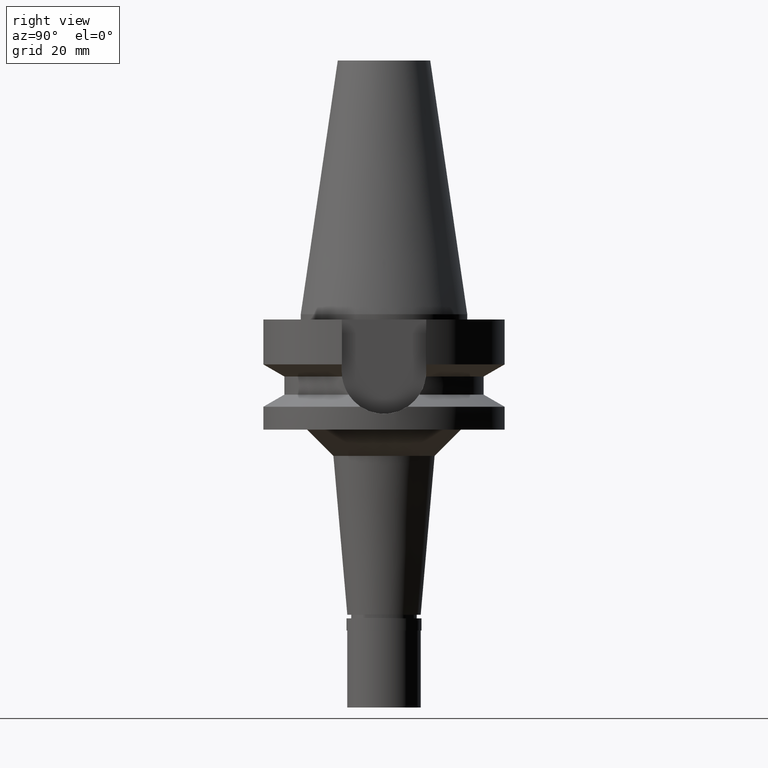
[diagram: clean part render]
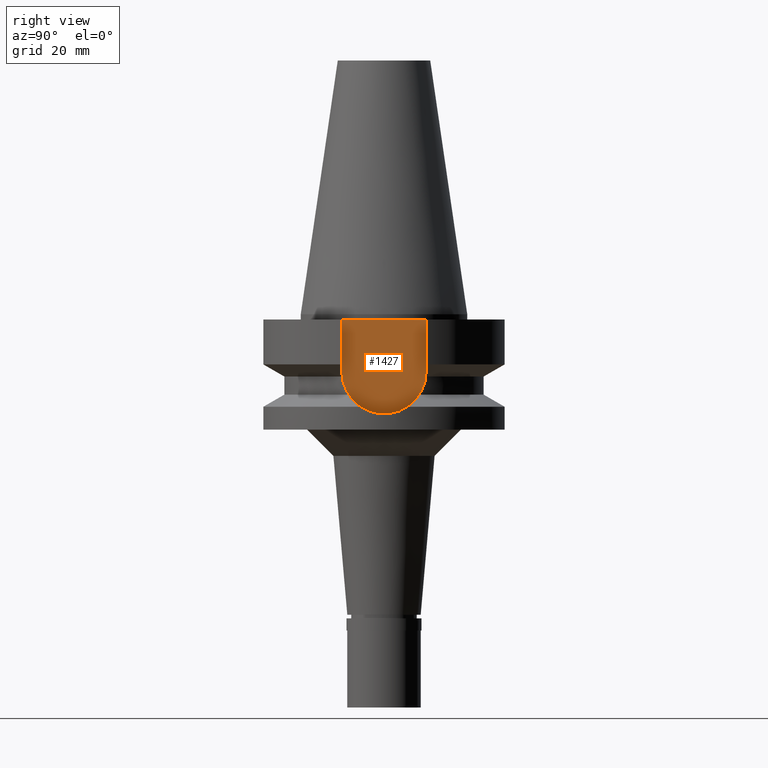
[diagram: same view with one face highlighted and labeled with its STEP entity id]
A machine part, right view. The second image highlights one B-rep face of the part: STEP entity #1427.
In plain terms, the highlighted planar face has unit normal (1, 0, 0).
Its self-contained STEP definition (entity closure, byte-faithful):
#41 = VECTOR ( 'NONE', #2615, 1000.000000000000000 ) ;
#118 = EDGE_LOOP ( 'NONE', ( #211, #2267, #1821, #1286 ) ) ;
#211 = ORIENTED_EDGE ( 'NONE', *, *, #2617, .F. ) ;
#287 = DIRECTION ( 'NONE',  ( 0.0000000000000000000, 1.000000000000000000, 0.0000000000000000000 ) ) ;
#316 = DIRECTION ( 'NONE',  ( -1.000000000000000000, 0.0000000000000000000, 0.0000000000000000000 ) ) ;
#365 = EDGE_CURVE ( 'NONE', #2591, #1863, #2030, .T. ) ;
#406 = CARTESIAN_POINT ( 'NONE',  ( 16.29999999999999716, 8.050000000000000711, -1.000000000000000000 ) ) ;
#518 = EDGE_CURVE ( 'NONE', #870, #1696, #2393, .T. ) ;
#559 = DIRECTION ( 'NONE',  ( 1.000000000000000000, 0.0000000000000000000, 0.0000000000000000000 ) ) ;
#667 = CARTESIAN_POINT ( 'NONE',  ( 16.29999999999999716, 8.050000000000000711, -1.000000000000000000 ) ) ;
#741 = AXIS2_PLACEMENT_3D ( 'NONE', #1634, #559, #287 ) ;
#840 = EDGE_CURVE ( 'NONE', #2591, #870, #1747, .T. ) ;
#870 = VERTEX_POINT ( 'NONE', #2487 ) ;
#1286 = ORIENTED_EDGE ( 'NONE', *, *, #365, .T. ) ;
#1380 = DIRECTION ( 'NONE',  ( 0.0000000000000000000, 0.0000000000000000000, -1.000000000000000000 ) ) ;
#1427 = ADVANCED_FACE ( 'NONE', ( #2308 ), #2556, .T. ) ;
#1562 = DIRECTION ( 'NONE',  ( 0.0000000000000000000, 0.0000000000000000000, -1.000000000000000000 ) ) ;
#1634 = CARTESIAN_POINT ( 'NONE',  ( 16.29999999999999716, 0.0000000000000000000, 0.0000000000000000000 ) ) ;
#1649 = CARTESIAN_POINT ( 'NONE',  ( 16.29999999999999716, -8.050000000000000711, -1.000000000000000000 ) ) ;
#1696 = VERTEX_POINT ( 'NONE', #2589 ) ;
#1747 = LINE ( 'NONE', #406, #2632 ) ;
#1766 = DIRECTION ( 'NONE',  ( 0.0000000000000000000, -1.000000000000000000, 0.0000000000000000000 ) ) ;
#1806 = VECTOR ( 'NONE', #1766, 1000.000000000000000 ) ;
#1821 = ORIENTED_EDGE ( 'NONE', *, *, #840, .F. ) ;
#1863 = VERTEX_POINT ( 'NONE', #1649 ) ;
#2030 = LINE ( 'NONE', #667, #1806 ) ;
#2103 = CARTESIAN_POINT ( 'NONE',  ( 16.29999999999999716, 0.0000000000000000000, -10.94999999999999929 ) ) ;
#2214 = LINE ( 'NONE', #2683, #41 ) ;
#2246 = CARTESIAN_POINT ( 'NONE',  ( 16.29999999999999716, 8.050000000000000711, -1.000000000000000000 ) ) ;
#2267 = ORIENTED_EDGE ( 'NONE', *, *, #518, .F. ) ;
#2299 = AXIS2_PLACEMENT_3D ( 'NONE', #2103, #316, #1380 ) ;
#2308 = FACE_OUTER_BOUND ( 'NONE', #118, .T. ) ;
#2393 = CIRCLE ( 'NONE', #2299, 8.050000000000000711 ) ;
#2487 = CARTESIAN_POINT ( 'NONE',  ( 16.29999999999999716, 8.050000000000000711, -10.94999999999999929 ) ) ;
#2556 = PLANE ( 'NONE',  #741 ) ;
#2589 = CARTESIAN_POINT ( 'NONE',  ( 16.29999999999999716, -8.050000000000000711, -10.94999999999999929 ) ) ;
#2591 = VERTEX_POINT ( 'NONE', #2246 ) ;
#2615 = DIRECTION ( 'NONE',  ( 0.0000000000000000000, 0.0000000000000000000, 1.000000000000000000 ) ) ;
#2617 = EDGE_CURVE ( 'NONE', #1696, #1863, #2214, .T. ) ;
#2632 = VECTOR ( 'NONE', #1562, 1000.000000000000000 ) ;
#2683 = CARTESIAN_POINT ( 'NONE',  ( 16.29999999999999716, -8.050000000000000711, -10.94999999999999929 ) ) ;